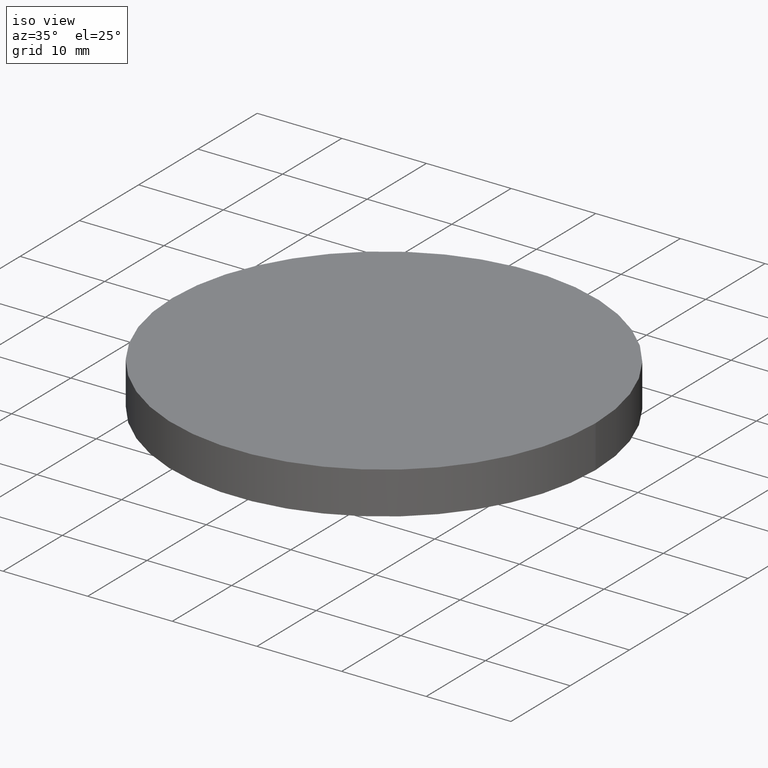
[diagram: clean part render]
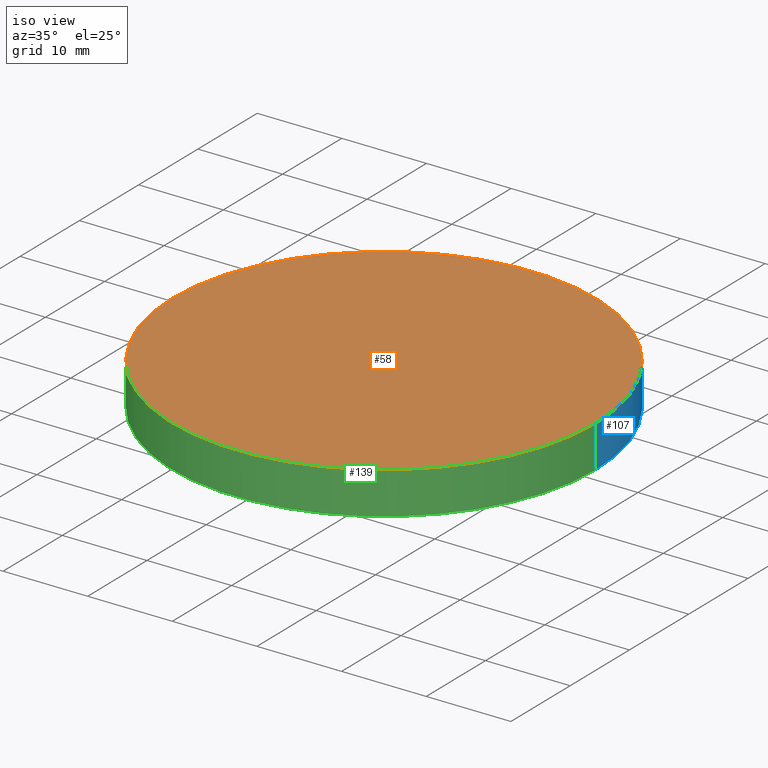
[diagram: same view with three faces highlighted in distinct colors, each labeled with its STEP entity id]
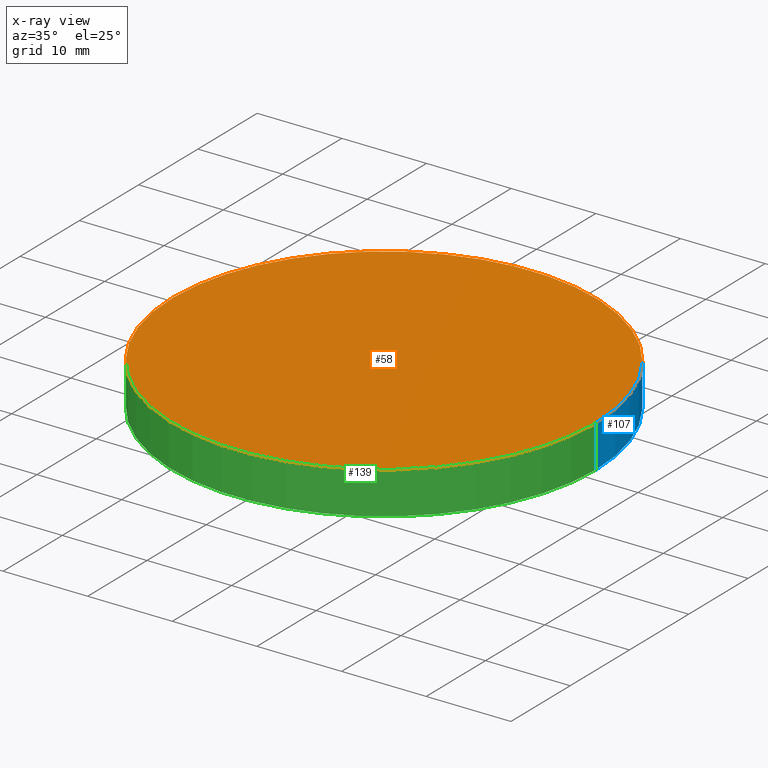
[diagram: x-ray of the same camera — body ghosted, the three highlighted faces saturated]
A machine part, iso view with three faces highlighted in distinct colors.
The next image is the same camera in x-ray (body ghosted, the three faces saturated) — at least one of them is partly hidden behind the body in this view.
Their STEP definitions:

[orange] entity #58 — the highlighted planar face has unit normal (0, 0, 1).
#1 = AXIS2_PLACEMENT_3D ( 'NONE', #88, #60, #124 ) ;
#9 = VERTEX_POINT ( 'NONE', #79 ) ;
#16 = VERTEX_POINT ( 'NONE', #89 ) ;
#23 = EDGE_CURVE ( 'NONE', #16, #9, #36, .T. ) ;
#29 = FACE_OUTER_BOUND ( 'NONE', #69, .T. ) ;
#36 = CIRCLE ( 'NONE', #80, 25.00000000000000000 ) ;
#47 = EDGE_CURVE ( 'NONE', #9, #16, #137, .T. ) ;
#51 = ORIENTED_EDGE ( 'NONE', *, *, #47, .T. ) ;
#58 = ADVANCED_FACE ( 'NONE', ( #29 ), #109, .T. ) ;
#60 = DIRECTION ( 'NONE',  ( 0.0000000000000000000, 0.0000000000000000000, 1.000000000000000000 ) ) ;
#62 = DIRECTION ( 'NONE',  ( 0.0000000000000000000, 0.0000000000000000000, 1.000000000000000000 ) ) ;
#69 = EDGE_LOOP ( 'NONE', ( #51, #82 ) ) ;
#75 = DIRECTION ( 'NONE',  ( 0.0000000000000000000, 0.0000000000000000000, 1.000000000000000000 ) ) ;
#79 = CARTESIAN_POINT ( 'NONE',  ( -25.00000000000000000, 0.0000000000000000000, 5.000000000000000000 ) ) ;
#80 = AXIS2_PLACEMENT_3D ( 'NONE', #133, #62, #125 ) ;
#82 = ORIENTED_EDGE ( 'NONE', *, *, #23, .T. ) ;
#86 = AXIS2_PLACEMENT_3D ( 'NONE', #140, #75, #132 ) ;
#88 = CARTESIAN_POINT ( 'NONE',  ( 0.0000000000000000000, 0.0000000000000000000, 5.000000000000000000 ) ) ;
#89 = CARTESIAN_POINT ( 'NONE',  ( 25.00000000000000000, 3.061616997868383000E-015, 5.000000000000000000 ) ) ;
#109 = PLANE ( 'NONE',  #1 ) ;
#124 = DIRECTION ( 'NONE',  ( 1.000000000000000000, 0.0000000000000000000, -0.0000000000000000000 ) ) ;
#125 = DIRECTION ( 'NONE',  ( 1.000000000000000000, 0.0000000000000000000, 0.0000000000000000000 ) ) ;
#132 = DIRECTION ( 'NONE',  ( 1.000000000000000000, 0.0000000000000000000, 0.0000000000000000000 ) ) ;
#133 = CARTESIAN_POINT ( 'NONE',  ( 0.0000000000000000000, 0.0000000000000000000, 5.000000000000000000 ) ) ;
#137 = CIRCLE ( 'NONE', #86, 25.00000000000000000 ) ;
#140 = CARTESIAN_POINT ( 'NONE',  ( 0.0000000000000000000, 0.0000000000000000000, 5.000000000000000000 ) ) ;

[blue] entity #107 — the highlighted cylindrical surface (partial cylindrical patch) has radius 25 mm, axis along (-0, -0, -1).
#4 = ORIENTED_EDGE ( 'NONE', *, *, #23, .F. ) ;
#8 = AXIS2_PLACEMENT_3D ( 'NONE', #74, #131, #59 ) ;
#9 = VERTEX_POINT ( 'NONE', #79 ) ;
#10 = VERTEX_POINT ( 'NONE', #65 ) ;
#16 = VERTEX_POINT ( 'NONE', #89 ) ;
#20 = AXIS2_PLACEMENT_3D ( 'NONE', #123, #87, #45 ) ;
#22 = CARTESIAN_POINT ( 'NONE',  ( 25.00000000000000000, 3.061616997868383000E-015, 5.000000000000000000 ) ) ;
#23 = EDGE_CURVE ( 'NONE', #16, #9, #36, .T. ) ;
#24 = CYLINDRICAL_SURFACE ( 'NONE', #20, 25.00000000000000000 ) ;
#25 = DIRECTION ( 'NONE',  ( -0.0000000000000000000, -0.0000000000000000000, -1.000000000000000000 ) ) ;
#36 = CIRCLE ( 'NONE', #80, 25.00000000000000000 ) ;
#37 = CARTESIAN_POINT ( 'NONE',  ( -25.00000000000000000, 0.0000000000000000000, 0.0000000000000000000 ) ) ;
#45 = DIRECTION ( 'NONE',  ( -1.000000000000000000, 0.0000000000000000000, 0.0000000000000000000 ) ) ;
#59 = DIRECTION ( 'NONE',  ( 1.000000000000000000, 0.0000000000000000000, 0.0000000000000000000 ) ) ;
#61 = CIRCLE ( 'NONE', #8, 25.00000000000000000 ) ;
#62 = DIRECTION ( 'NONE',  ( 0.0000000000000000000, 0.0000000000000000000, 1.000000000000000000 ) ) ;
#65 = CARTESIAN_POINT ( 'NONE',  ( 25.00000000000000000, 3.061616997868383000E-015, 0.0000000000000000000 ) ) ;
#66 = ORIENTED_EDGE ( 'NONE', *, *, #92, .T. ) ;
#74 = CARTESIAN_POINT ( 'NONE',  ( 0.0000000000000000000, 0.0000000000000000000, 0.0000000000000000000 ) ) ;
#78 = VERTEX_POINT ( 'NONE', #37 ) ;
#79 = CARTESIAN_POINT ( 'NONE',  ( -25.00000000000000000, 0.0000000000000000000, 5.000000000000000000 ) ) ;
#80 = AXIS2_PLACEMENT_3D ( 'NONE', #133, #62, #125 ) ;
#83 = ORIENTED_EDGE ( 'NONE', *, *, #114, .T. ) ;
#84 = EDGE_CURVE ( 'NONE', #9, #78, #117, .T. ) ;
#87 = DIRECTION ( 'NONE',  ( -0.0000000000000000000, -0.0000000000000000000, -1.000000000000000000 ) ) ;
#89 = CARTESIAN_POINT ( 'NONE',  ( 25.00000000000000000, 3.061616997868383000E-015, 5.000000000000000000 ) ) ;
#92 = EDGE_CURVE ( 'NONE', #10, #78, #61, .T. ) ;
#98 = DIRECTION ( 'NONE',  ( -0.0000000000000000000, -0.0000000000000000000, -1.000000000000000000 ) ) ;
#101 = ORIENTED_EDGE ( 'NONE', *, *, #84, .F. ) ;
#102 = FACE_OUTER_BOUND ( 'NONE', #112, .T. ) ;
#107 = ADVANCED_FACE ( 'NONE', ( #102 ), #24, .T. ) ;
#108 = CARTESIAN_POINT ( 'NONE',  ( -25.00000000000000000, 0.0000000000000000000, 5.000000000000000000 ) ) ;
#112 = EDGE_LOOP ( 'NONE', ( #4, #83, #66, #101 ) ) ;
#114 = EDGE_CURVE ( 'NONE', #16, #10, #121, .T. ) ;
#117 = LINE ( 'NONE', #108, #134 ) ;
#121 = LINE ( 'NONE', #22, #136 ) ;
#123 = CARTESIAN_POINT ( 'NONE',  ( 0.0000000000000000000, 0.0000000000000000000, 5.000000000000000000 ) ) ;
#125 = DIRECTION ( 'NONE',  ( 1.000000000000000000, 0.0000000000000000000, 0.0000000000000000000 ) ) ;
#131 = DIRECTION ( 'NONE',  ( 0.0000000000000000000, 0.0000000000000000000, 1.000000000000000000 ) ) ;
#133 = CARTESIAN_POINT ( 'NONE',  ( 0.0000000000000000000, 0.0000000000000000000, 5.000000000000000000 ) ) ;
#134 = VECTOR ( 'NONE', #25, 1000.000000000000000 ) ;
#136 = VECTOR ( 'NONE', #98, 1000.000000000000000 ) ;

[green] entity #139 — the highlighted cylindrical surface (partial cylindrical patch) has radius 25 mm, axis along (-0, -0, -1).
#9 = VERTEX_POINT ( 'NONE', #79 ) ;
#10 = VERTEX_POINT ( 'NONE', #65 ) ;
#12 = CARTESIAN_POINT ( 'NONE',  ( 0.0000000000000000000, 0.0000000000000000000, 5.000000000000000000 ) ) ;
#16 = VERTEX_POINT ( 'NONE', #89 ) ;
#18 = FACE_OUTER_BOUND ( 'NONE', #128, .T. ) ;
#22 = CARTESIAN_POINT ( 'NONE',  ( 25.00000000000000000, 3.061616997868383000E-015, 5.000000000000000000 ) ) ;
#25 = DIRECTION ( 'NONE',  ( -0.0000000000000000000, -0.0000000000000000000, -1.000000000000000000 ) ) ;
#30 = AXIS2_PLACEMENT_3D ( 'NONE', #12, #57, #97 ) ;
#35 = DIRECTION ( 'NONE',  ( 0.0000000000000000000, 0.0000000000000000000, 1.000000000000000000 ) ) ;
#37 = CARTESIAN_POINT ( 'NONE',  ( -25.00000000000000000, 0.0000000000000000000, 0.0000000000000000000 ) ) ;
#43 = ORIENTED_EDGE ( 'NONE', *, *, #47, .F. ) ;
#47 = EDGE_CURVE ( 'NONE', #9, #16, #137, .T. ) ;
#54 = CYLINDRICAL_SURFACE ( 'NONE', #30, 25.00000000000000000 ) ;
#55 = CIRCLE ( 'NONE', #67, 25.00000000000000000 ) ;
#57 = DIRECTION ( 'NONE',  ( -0.0000000000000000000, -0.0000000000000000000, -1.000000000000000000 ) ) ;
#65 = CARTESIAN_POINT ( 'NONE',  ( 25.00000000000000000, 3.061616997868383000E-015, 0.0000000000000000000 ) ) ;
#67 = AXIS2_PLACEMENT_3D ( 'NONE', #116, #35, #106 ) ;
#70 = ORIENTED_EDGE ( 'NONE', *, *, #84, .T. ) ;
#75 = DIRECTION ( 'NONE',  ( 0.0000000000000000000, 0.0000000000000000000, 1.000000000000000000 ) ) ;
#78 = VERTEX_POINT ( 'NONE', #37 ) ;
#79 = CARTESIAN_POINT ( 'NONE',  ( -25.00000000000000000, 0.0000000000000000000, 5.000000000000000000 ) ) ;
#84 = EDGE_CURVE ( 'NONE', #9, #78, #117, .T. ) ;
#86 = AXIS2_PLACEMENT_3D ( 'NONE', #140, #75, #132 ) ;
#89 = CARTESIAN_POINT ( 'NONE',  ( 25.00000000000000000, 3.061616997868383000E-015, 5.000000000000000000 ) ) ;
#94 = EDGE_CURVE ( 'NONE', #78, #10, #55, .T. ) ;
#97 = DIRECTION ( 'NONE',  ( -1.000000000000000000, 0.0000000000000000000, 0.0000000000000000000 ) ) ;
#98 = DIRECTION ( 'NONE',  ( -0.0000000000000000000, -0.0000000000000000000, -1.000000000000000000 ) ) ;
#106 = DIRECTION ( 'NONE',  ( 1.000000000000000000, 0.0000000000000000000, 0.0000000000000000000 ) ) ;
#108 = CARTESIAN_POINT ( 'NONE',  ( -25.00000000000000000, 0.0000000000000000000, 5.000000000000000000 ) ) ;
#111 = ORIENTED_EDGE ( 'NONE', *, *, #114, .F. ) ;
#114 = EDGE_CURVE ( 'NONE', #16, #10, #121, .T. ) ;
#116 = CARTESIAN_POINT ( 'NONE',  ( 0.0000000000000000000, 0.0000000000000000000, 0.0000000000000000000 ) ) ;
#117 = LINE ( 'NONE', #108, #134 ) ;
#121 = LINE ( 'NONE', #22, #136 ) ;
#128 = EDGE_LOOP ( 'NONE', ( #111, #43, #70, #129 ) ) ;
#129 = ORIENTED_EDGE ( 'NONE', *, *, #94, .T. ) ;
#132 = DIRECTION ( 'NONE',  ( 1.000000000000000000, 0.0000000000000000000, 0.0000000000000000000 ) ) ;
#134 = VECTOR ( 'NONE', #25, 1000.000000000000000 ) ;
#136 = VECTOR ( 'NONE', #98, 1000.000000000000000 ) ;
#137 = CIRCLE ( 'NONE', #86, 25.00000000000000000 ) ;
#139 = ADVANCED_FACE ( 'NONE', ( #18 ), #54, .T. ) ;
#140 = CARTESIAN_POINT ( 'NONE',  ( 0.0000000000000000000, 0.0000000000000000000, 5.000000000000000000 ) ) ;